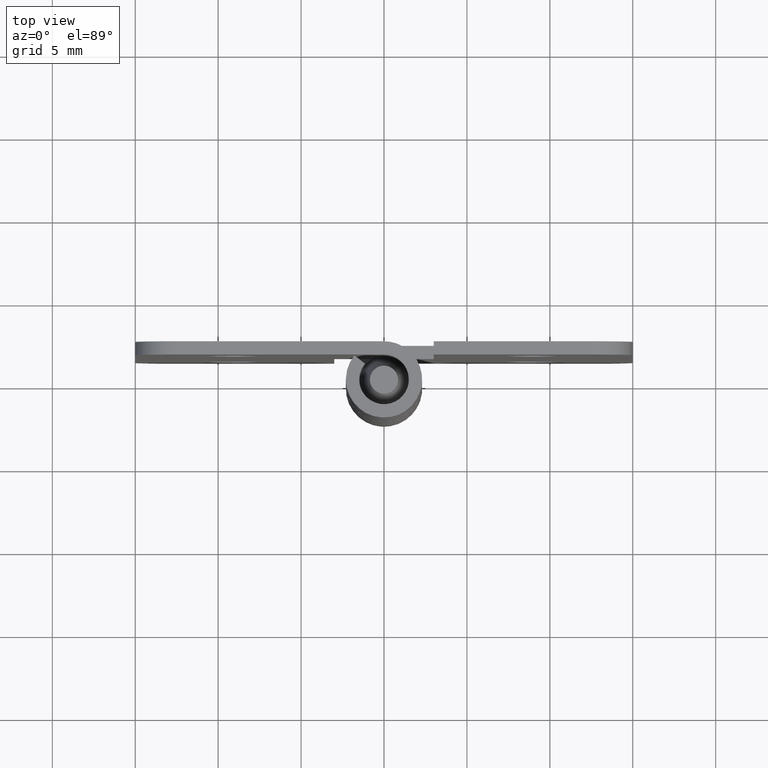
[diagram: clean part render]
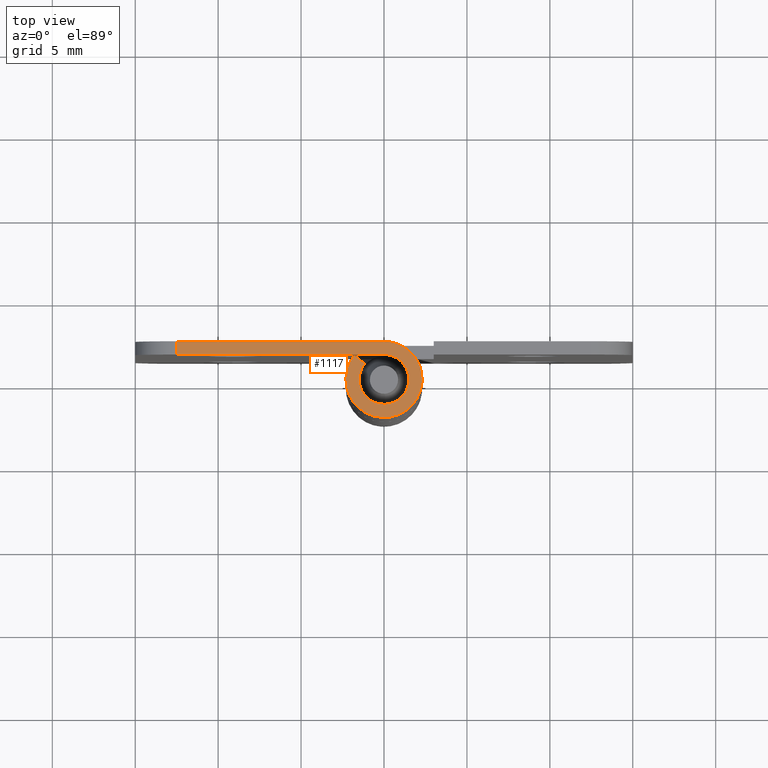
[diagram: same view with one face highlighted and labeled with its STEP entity id]
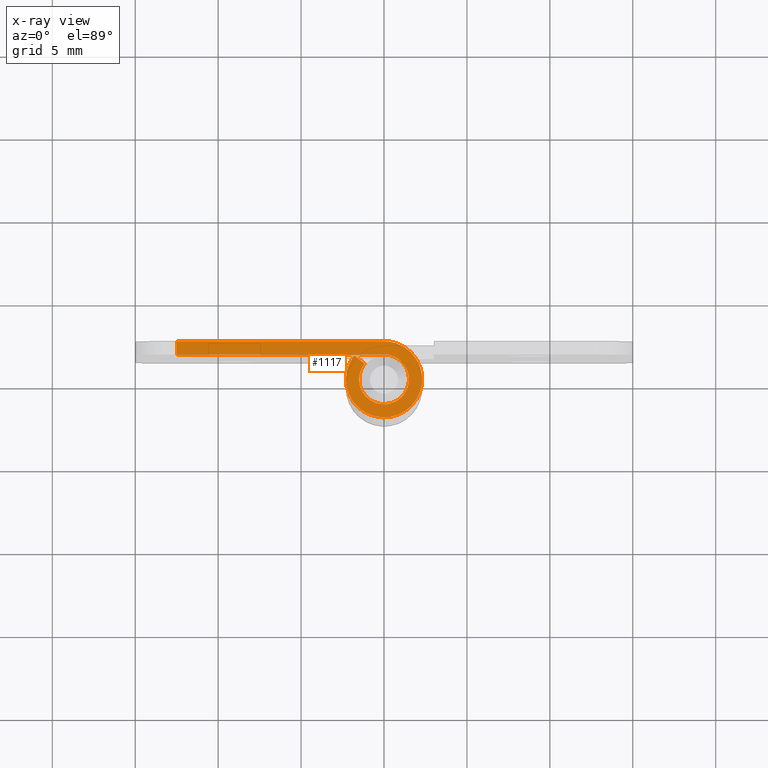
[diagram: x-ray of the same camera — body ghosted, the highlighted face saturated]
A machine part, top view. The second image highlights one B-rep face of the part: STEP entity #1117.
The next image is the same camera in x-ray: the body ghosted, the highlighted face saturated — about 0% of this face is hidden behind the body in this view.
In plain terms, the highlighted face is a freeform B-spline surface patch.
Its self-contained STEP definition (entity closure, byte-faithful):
#938=CARTESIAN_POINT('',(-12.499991999999899,1.499999999999986,31.999991999999889));
#939=VERTEX_POINT('',#938);
#955=CARTESIAN_POINT('',(-12.499991999999899,2.299999000000000,31.999991999999889));
#956=VERTEX_POINT('',#955);
#957=CARTESIAN_POINT('',(-12.499991999999899,1.499999999999986,31.999991999999889));
#958=CARTESIAN_POINT('',(-12.499991999999899,2.299999000000000,31.999991999999889));
#959=QUASI_UNIFORM_CURVE('',1,(#957,#958),.UNSPECIFIED.,.F.,.U.);
#960=EDGE_CURVE('',#939,#956,#959,.T.);
#1048=CARTESIAN_POINT('',(3.036604809937674,2.529353033552384,31.999991999999889));
#1049=CARTESIAN_POINT('',(-13.239125671793820,2.529353033552384,31.999991999999889));
#1050=CARTESIAN_POINT('',(3.036604809937674,-2.521027678140547,31.999991999999889));
#1051=CARTESIAN_POINT('',(-13.239125671793820,-2.521027678140547,31.999991999999889));
#1052=B_SPLINE_SURFACE_WITH_KNOTS('',1,1,((#1048,#1050),(#1049,#1051)),.UNSPECIFIED.,.F.,.F.,.U.,(2,2),(2,2),(0.0,16.275730481731490),(0.0,5.050380711692930),.UNSPECIFIED.);
#1053=CARTESIAN_POINT('',(0.0,1.499999999999986,31.999991999999889));
#1054=VERTEX_POINT('',#1053);
#1055=CARTESIAN_POINT('',(0.0,1.499999999999986,31.999991999999889));
#1056=CARTESIAN_POINT('',(-12.499991999999899,1.499999999999986,31.999991999999889));
#1057=QUASI_UNIFORM_CURVE('',1,(#1055,#1056),.UNSPECIFIED.,.F.,.U.);
#1058=EDGE_CURVE('',#1054,#939,#1057,.T.);
#1059=ORIENTED_EDGE('',*,*,#1058,.F.);
#1060=CARTESIAN_POINT('',(-1.164363330740678,0.945652173913026,31.999991999999889));
#1061=VERTEX_POINT('',#1060);
#1062=CARTESIAN_POINT('',(-1.164363330740678,0.945652173913026,31.999991999999889));
#1063=CARTESIAN_POINT('',(-1.920221261170538,0.014978844204155,31.999991999999889));
#1064=CARTESIAN_POINT('',(-1.178974016243272,-0.927372777810071,31.999991999999889));
#1065=CARTESIAN_POINT('',(-0.437726771316006,-1.869724399824297,31.999991999999889));
#1066=CARTESIAN_POINT('',(0.644795215215820,-1.354340847214889,31.999991999999889));
#1067=CARTESIAN_POINT('',(1.727317201747646,-0.838957294605480,31.999991999999889));
#1068=CARTESIAN_POINT('',(1.463132131904407,0.330521352697253,31.999991999999889));
#1069=CARTESIAN_POINT('',(1.198947062061169,1.499999999999986,31.999991999999889));
#1070=CARTESIAN_POINT('',(0.0,1.499999999999986,31.999991999999889));
#1078=(BOUNDED_CURVE()B_SPLINE_CURVE(2,(#1062,#1063,#1064,#1065,#1066,#1067,#1068,#1069,#1070),.UNSPECIFIED.,.F.,.U.)B_SPLINE_CURVE_WITH_KNOTS((3,2,2,2,3),(0.0,0.250000000000000,0.500000000000000,0.750000000000000,1.0),.UNSPECIFIED.)CURVE()GEOMETRIC_REPRESENTATION_ITEM()RATIONAL_B_SPLINE_CURVE((1.0,0.781136213622451,1.0,0.781136213622451,1.0,0.781136213622451,1.0,0.781136213622451,1.0))REPRESENTATION_ITEM(''));
#1079=EDGE_CURVE('',#1061,#1054,#1078,.T.);
#1080=ORIENTED_EDGE('',*,*,#1079,.F.);
#1081=CARTESIAN_POINT('',(-1.785357107135720,1.449999999999984,31.999991999999889));
#1082=VERTEX_POINT('',#1081);
#1083=CARTESIAN_POINT('',(-1.785357107135720,1.449999999999984,31.999991999999889));
#1084=CARTESIAN_POINT('',(-1.164363330740678,0.945652173913026,31.999991999999889));
#1085=QUASI_UNIFORM_CURVE('',1,(#1083,#1084),.UNSPECIFIED.,.F.,.U.);
#1086=EDGE_CURVE('',#1082,#1061,#1085,.T.);
#1087=ORIENTED_EDGE('',*,*,#1086,.F.);
#1088=CARTESIAN_POINT('',(-0.002144760839373,2.299999000000000,31.999991999999889));
#1089=VERTEX_POINT('',#1088);
#1090=CARTESIAN_POINT('',(-1.785357107135723,1.449999999999986,31.999991999999889));
#1091=CARTESIAN_POINT('',(-2.944616290260491,0.022626467859174,31.999991999999889));
#1092=CARTESIAN_POINT('',(-1.807428610267847,-1.422392990275627,31.999991999999889));
#1093=CARTESIAN_POINT('',(-0.670240930275202,-2.867412448410426,31.999991999999889));
#1094=CARTESIAN_POINT('',(0.989654135041058,-2.076194762780249,31.999991999999889));
#1095=CARTESIAN_POINT('',(2.649549200357319,-1.284977077150072,31.999991999999889));
#1096=CARTESIAN_POINT('',(2.243114275596144,0.508368317872768,31.999991999999889));
#1097=CARTESIAN_POINT('',(1.836679350834969,2.301713712895608,31.999991999999889));
#1098=CARTESIAN_POINT('',(-0.002144760839373,2.299998999999988,31.999991999999889));
#1106=(BOUNDED_CURVE()B_SPLINE_CURVE(2,(#1090,#1091,#1092,#1093,#1094,#1095,#1096,#1097,#1098),.UNSPECIFIED.,.F.,.U.)B_SPLINE_CURVE_WITH_KNOTS((3,2,2,2,3),(0.0,0.250000000000000,0.500000000000000,0.750000000000000,1.0),.UNSPECIFIED.)CURVE()GEOMETRIC_REPRESENTATION_ITEM()RATIONAL_B_SPLINE_CURVE((1.0,0.781063430899875,1.0,0.781063430899875,1.0,0.781063430899875,1.0,0.781063430899875,1.0))REPRESENTATION_ITEM(''));
#1107=EDGE_CURVE('',#1082,#1089,#1106,.T.);
#1108=ORIENTED_EDGE('',*,*,#1107,.T.);
#1109=CARTESIAN_POINT('',(-12.499991999999899,2.299999000000000,31.999991999999889));
#1110=CARTESIAN_POINT('',(-0.002144760839373,2.299999000000000,31.999991999999889));
#1111=QUASI_UNIFORM_CURVE('',1,(#1109,#1110),.UNSPECIFIED.,.F.,.U.);
#1112=EDGE_CURVE('',#956,#1089,#1111,.T.);
#1113=ORIENTED_EDGE('',*,*,#1112,.F.);
#1114=ORIENTED_EDGE('',*,*,#960,.F.);
#1115=EDGE_LOOP('',(#1059,#1080,#1087,#1108,#1113,#1114));
#1116=FACE_OUTER_BOUND('',#1115,.T.);
#1117=ADVANCED_FACE('',(#1116),#1052,.T.);